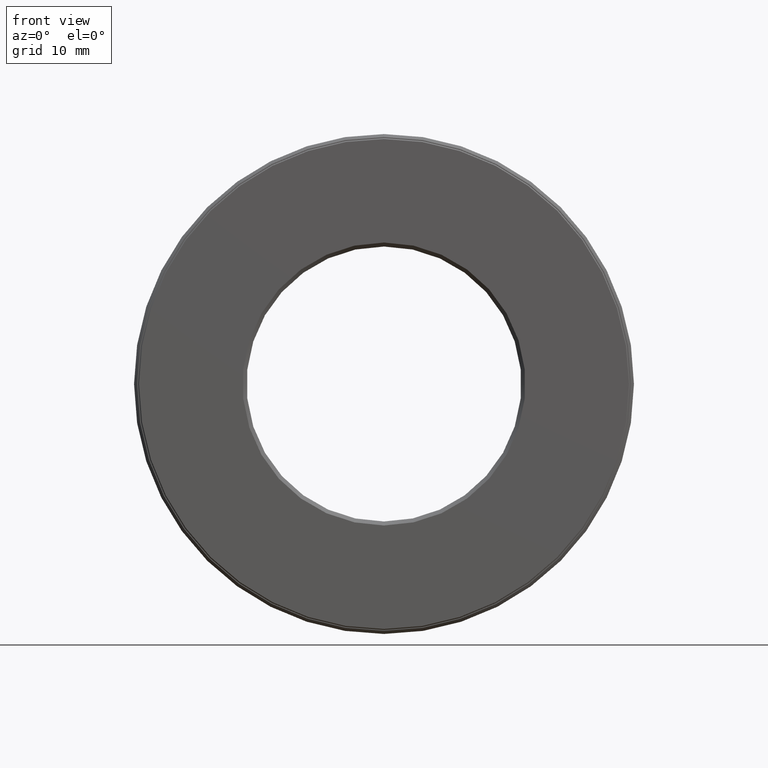
[diagram: clean part render]
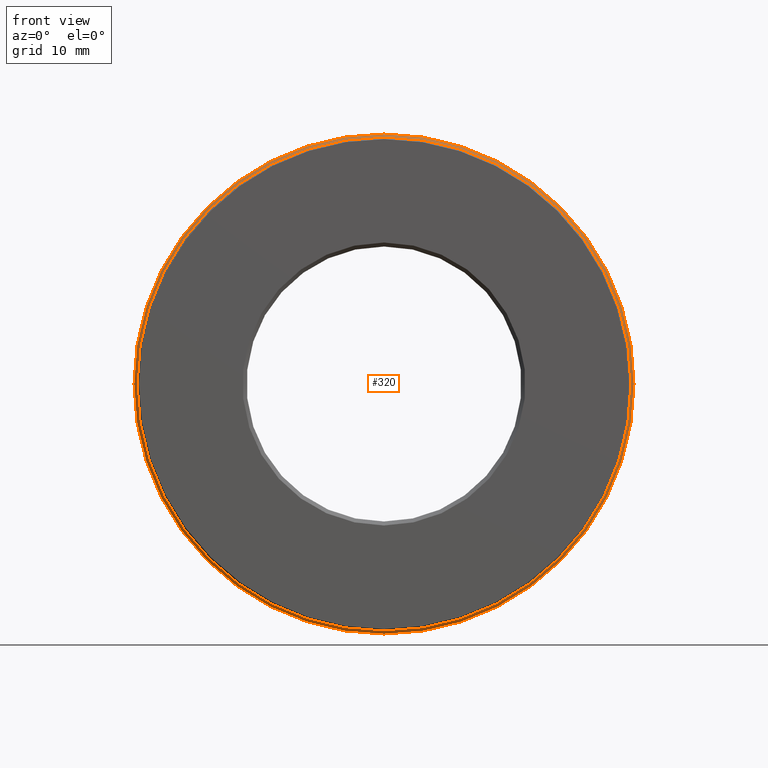
[diagram: same view with one face highlighted and labeled with its STEP entity id]
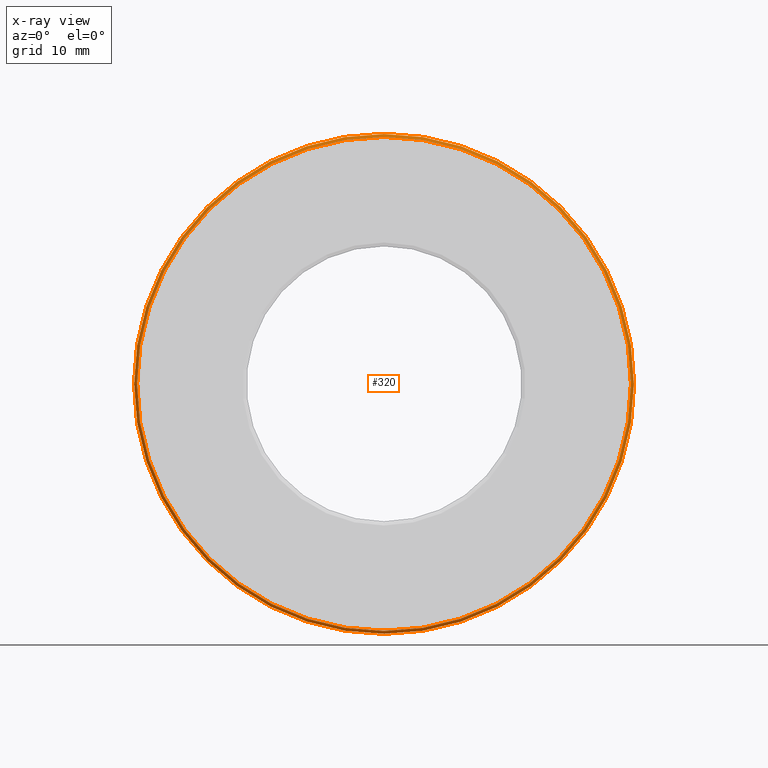
[diagram: x-ray of the same camera — body ghosted, the highlighted face saturated]
A machine part, front view. The second image highlights one B-rep face of the part: STEP entity #320.
The next image is the same camera in x-ray: the body ghosted, the highlighted face saturated — about 0% of this face is hidden behind the body in this view.
In plain terms, the highlighted conical surface has half-angle 45 deg.
Its self-contained STEP definition (entity closure, byte-faithful):
#2 = DIRECTION ( 'NONE',  ( 0.0000000000000000000, 0.0000000000000000000, 1.000000000000000000 ) ) ;
#5 = VERTEX_POINT ( 'NONE', #175 ) ;
#22 = CIRCLE ( 'NONE', #460, 1.250000000000000000 ) ;
#24 = CARTESIAN_POINT ( 'NONE',  ( 0.0000000000000000000, 0.01499999999999997700, 1.250000000000000000 ) ) ;
#55 = CARTESIAN_POINT ( 'NONE',  ( 0.0000000000000000000, -5.975917486140577600E-017, 0.0000000000000000000 ) ) ;
#56 = DIRECTION ( 'NONE',  ( 0.0000000000000000000, 0.0000000000000000000, 1.000000000000000000 ) ) ;
#60 = AXIS2_PLACEMENT_3D ( 'NONE', #55, #151, #56 ) ;
#66 = ORIENTED_EDGE ( 'NONE', *, *, #80, .F. ) ;
#70 = CARTESIAN_POINT ( 'NONE',  ( 0.0000000000000000000, -5.975917486140577600E-017, 0.0000000000000000000 ) ) ;
#80 = EDGE_CURVE ( 'NONE', #481, #481, #22, .T. ) ;
#85 = EDGE_LOOP ( 'NONE', ( #66 ) ) ;
#118 = CIRCLE ( 'NONE', #60, 1.235000000000000100 ) ;
#151 = DIRECTION ( 'NONE',  ( -0.0000000000000000000, 1.000000000000000000, -0.0000000000000000000 ) ) ;
#175 = CARTESIAN_POINT ( 'NONE',  ( 0.0000000000000000000, -5.975917486140577600E-017, 1.235000000000000100 ) ) ;
#191 = AXIS2_PLACEMENT_3D ( 'NONE', #70, #394, #437 ) ;
#194 = EDGE_CURVE ( 'NONE', #5, #5, #118, .T. ) ;
#212 = ORIENTED_EDGE ( 'NONE', *, *, #194, .T. ) ;
#276 = FACE_OUTER_BOUND ( 'NONE', #85, .T. ) ;
#316 = FACE_BOUND ( 'NONE', #596, .T. ) ;
#320 = ADVANCED_FACE ( 'NONE', ( #276, #316 ), #539, .T. ) ;
#327 = CARTESIAN_POINT ( 'NONE',  ( 0.0000000000000000000, 0.01499999999999997700, 0.0000000000000000000 ) ) ;
#394 = DIRECTION ( 'NONE',  ( -0.0000000000000000000, 1.000000000000000000, -0.0000000000000000000 ) ) ;
#437 = DIRECTION ( 'NONE',  ( 0.0000000000000000000, 0.0000000000000000000, 1.000000000000000000 ) ) ;
#460 = AXIS2_PLACEMENT_3D ( 'NONE', #327, #521, #2 ) ;
#481 = VERTEX_POINT ( 'NONE', #24 ) ;
#521 = DIRECTION ( 'NONE',  ( -0.0000000000000000000, 1.000000000000000000, -0.0000000000000000000 ) ) ;
#539 = CONICAL_SURFACE ( 'NONE', #191, 1.235000000000000100, 0.7853981633974463900 ) ;
#596 = EDGE_LOOP ( 'NONE', ( #212 ) ) ;